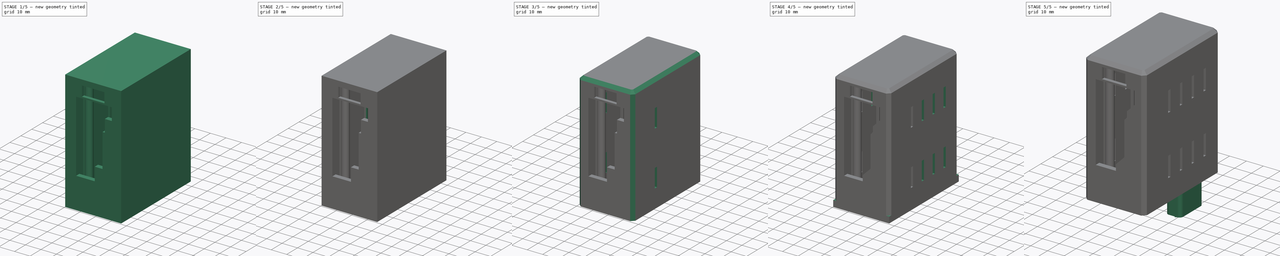
[diagram: build sequence overview — one tinted view per stage of 5, left to right]
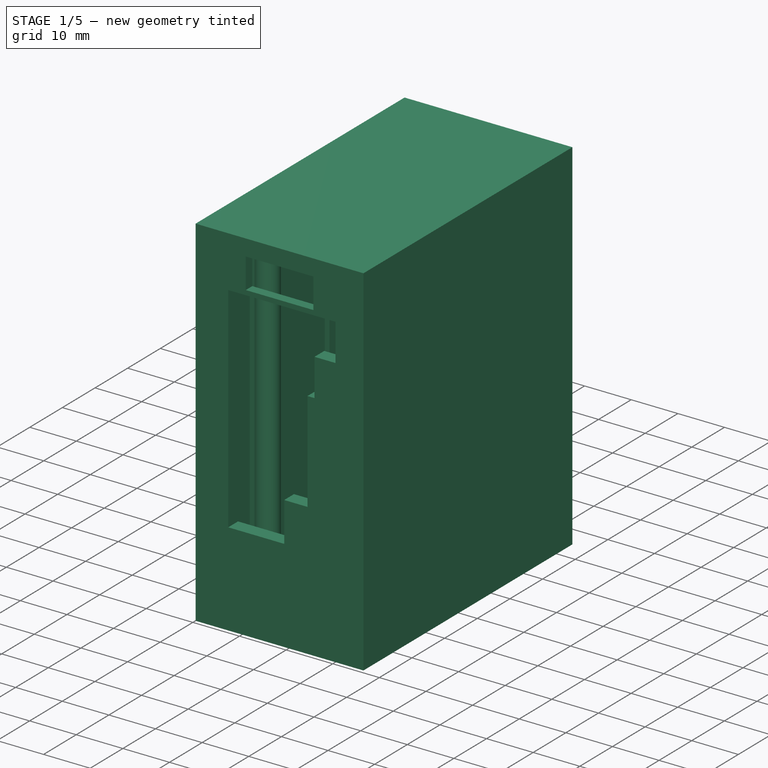
[diagram: stage 1 of 5 — iso view after this stage's code; geometry added in this stage tinted green]
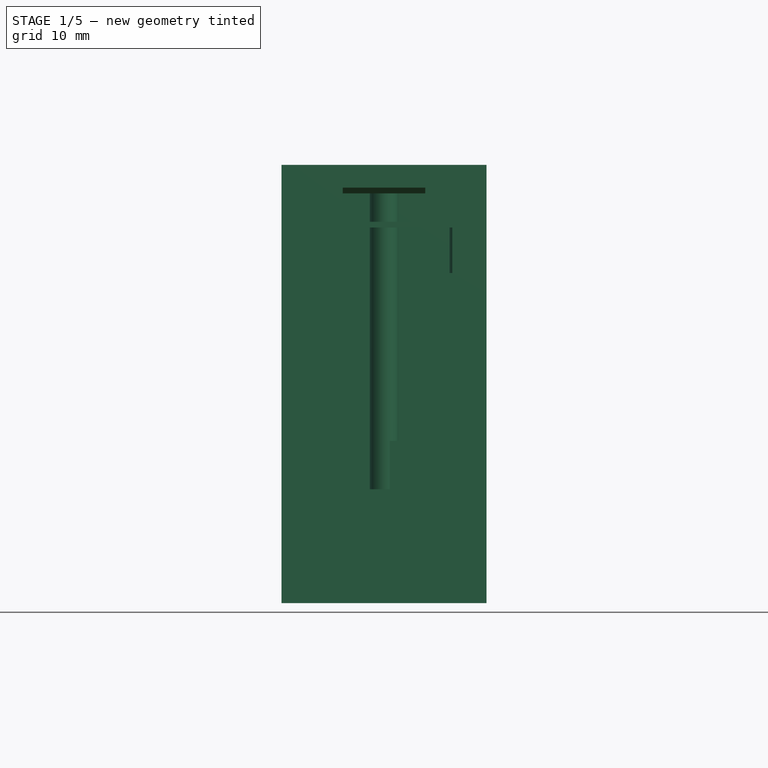
[diagram: stage 1 of 5 — front view after this stage's code; geometry added in this stage tinted green]
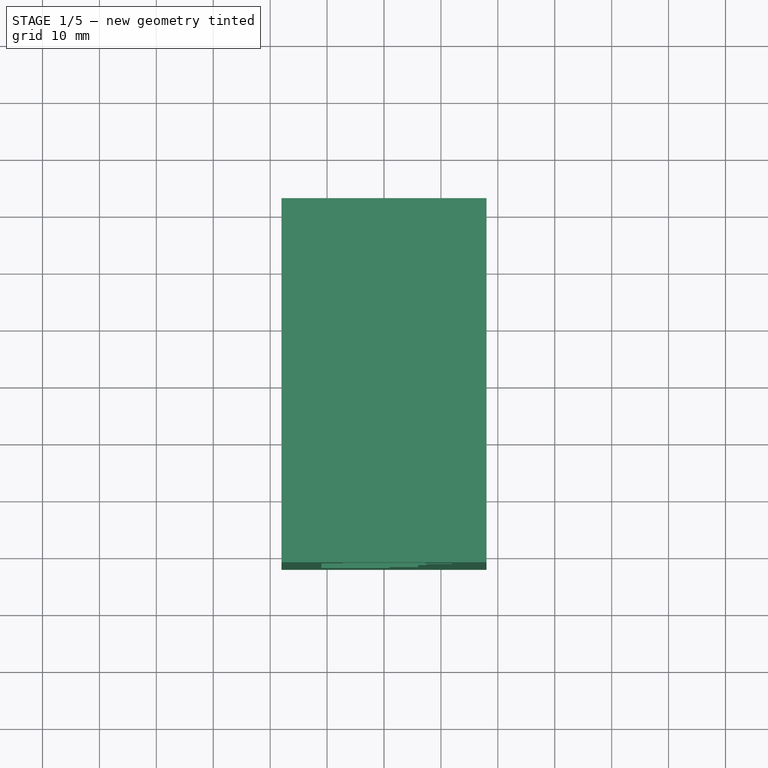
[diagram: stage 1 of 5 — top view after this stage's code; geometry added in this stage tinted green]
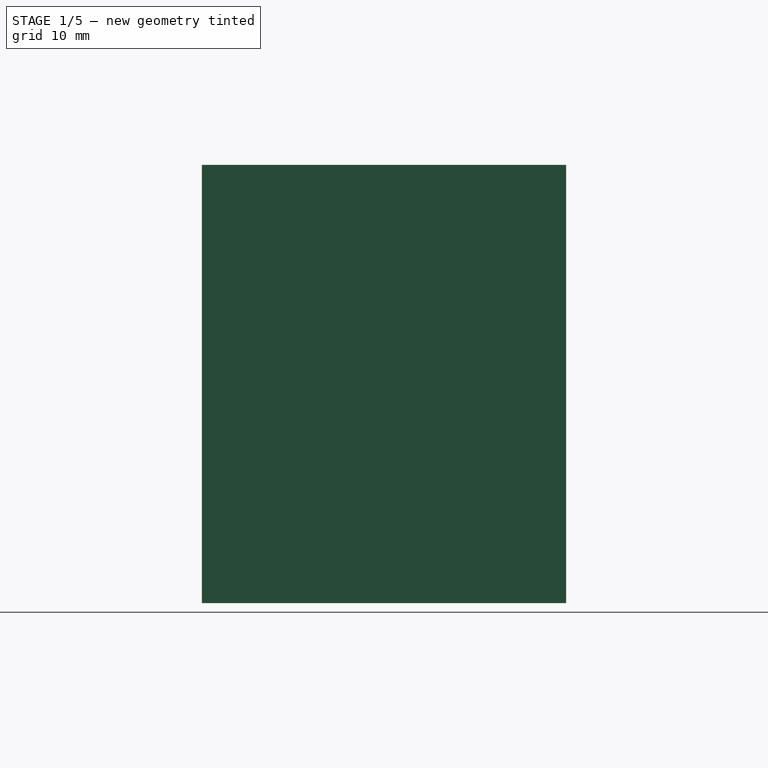
[diagram: stage 1 of 5 — right view after this stage's code; geometry added in this stage tinted green]
FCSTD DOCUMENT  (FreeCAD 0.19R)
Label: SwitchBoxUSB
License: All rights reserved
LicenseURL: http://en.wikipedia.org/wiki/All_rights_reserved
objects: Sketcher::SketchObject×17, PartDesign::Chamfer×14, PartDesign::Pocket×9, PartDesign::Pad×8, PartDesign::Fillet×5, PartDesign::Body×2, PartDesign::Mirrored×1, PartDesign::LinearPattern×1
note: 93 computed .brp shape members not serialized (recipe doc carries the construction recipe); baked Part::Feature solids carry a one-line shape summary decoded from their .brp

FEATURE [Sketcher::SketchObject] Sketch006
  FullyConstrained = false
  MapMode = 5
  Placement = pos=(0,0,0) rot=(1,0,0;3.14159rad)
  Support = -> [Pocket001]
  sketch-geometry (8):
    g0: LineSegment StartX=-15 StartY=-2.91162 StartZ=0 EndX=-15 EndY=-21.9362 EndZ=0
    g1: LineSegment StartX=15 StartY=-2.91162 StartZ=0 EndX=15 EndY=-21.9362 EndZ=0
    g2: LineSegment StartX=-6 StartY=-2.91162 StartZ=0 EndX=-6 EndY=-21.9362 EndZ=0
    g3: LineSegment StartX=6 StartY=-2.91162 StartZ=0 EndX=6 EndY=-21.9362 EndZ=0
    g4: LineSegment StartX=-15 StartY=-2.91162 StartZ=0 EndX=-6 EndY=-2.91162 EndZ=0
    g5: LineSegment StartX=-15 StartY=-21.9362 StartZ=0 EndX=-6 EndY=-21.9362 EndZ=0
    g6: LineSegment StartX=6 StartY=-2.91162 StartZ=0 EndX=15 EndY=-2.91162 EndZ=0
    g7: LineSegment StartX=6 StartY=-21.9362 StartZ=0 EndX=15 EndY=-21.9362 EndZ=0
  constraints (20):
    c: Vertical(g0)
    c: Vertical(g2)
    c: Coincident(g0,g4)
    c: Coincident(g4,g2)
    c: Horizontal(g4)
    c: Coincident(g0,g5)
    c: Coincident(g5,g2)
    c: Coincident(g3,g6)
    c: Coincident(g6,g1)
    c: Coincident(g3,g7)
    c: Coincident(g7,g1)
    c: Horizontal(g7)
    c: Vertical(g1)
    c: Distance(g5) = 9
    c: Distance(g7) = 9
    c: Horizontal(g6)
    c: Horizontal(g5)
    c: Symmetric(g3,g2,g-2)
    c: Symmetric(g3,g2,g-2)
    c: DistanceX(g2) = -6
FEATURE [Sketcher::SketchObject] Sketch
  FullyConstrained = false
  MapMode = 5
  Support = -> [XY_Plane]
  sketch-geometry (36):
    g0: LineSegment StartX=-18 StartY=32 StartZ=0 EndX=18 EndY=32 EndZ=0
    g1: LineSegment StartX=18 StartY=32 StartZ=0 EndX=18 EndY=-32 EndZ=0
    g2: LineSegment StartX=18 StartY=-32 StartZ=0 EndX=-18 EndY=-32 EndZ=0
    g3: LineSegment StartX=-18 StartY=-32 StartZ=0 EndX=-18 EndY=32 EndZ=0
    g4: LineSegment StartX=14.5 StartY=29 StartZ=0 EndX=14.5 EndY=24 EndZ=0
    g5: LineSegment StartX=14.5 StartY=24 StartZ=0 EndX=15.5 EndY=24 EndZ=0
    g6: LineSegment StartX=15.5 StartY=24 StartZ=0 EndX=15.5 EndY=22 EndZ=0
    g7: LineSegment StartX=15.5 StartY=22 StartZ=0 EndX=14.5 EndY=22 EndZ=0
    g8: LineSegment StartX=14.5 StartY=22 StartZ=0 EndX=14.5 EndY=4 EndZ=0
    g9: LineSegment StartX=14.5 StartY=4 StartZ=0 EndX=15.5 EndY=4 EndZ=0
    g10: LineSegment StartX=15.5 StartY=4 StartZ=0 EndX=15.5 EndY=2 EndZ=0
    g11: LineSegment StartX=15.5 StartY=2 StartZ=0 EndX=14.5 EndY=2 EndZ=0
    g12: LineSegment StartX=14.5 StartY=2 StartZ=0 EndX=14.5 EndY=-19 EndZ=0
    g13: LineSegment StartX=14.5 StartY=-19 StartZ=0 EndX=15.5 EndY=-19 EndZ=0
    g14: LineSegment StartX=15.5 StartY=-19 StartZ=0 EndX=15.5 EndY=-21 EndZ=0
    g15: LineSegment StartX=15.5 StartY=-21 StartZ=0 EndX=14.5 EndY=-21 EndZ=0
    g16: LineSegment StartX=14.5 StartY=-21 StartZ=0 EndX=14.5 EndY=-29 EndZ=0
    g17: LineSegment StartX=14.5 StartY=-29 StartZ=0 EndX=-14.5 EndY=-29 EndZ=0
    g18: LineSegment StartX=-14.5 StartY=-21 StartZ=0 EndX=-15.5 EndY=-21 EndZ=0
    g19: LineSegment StartX=-15.5 StartY=-21 StartZ=0 EndX=-15.5 EndY=-19 EndZ=0
    g20: LineSegment StartX=-15.5 StartY=-19 StartZ=0 EndX=-14.5 EndY=-19 EndZ=0
    g21: LineSegment StartX=-14.5 StartY=-19 StartZ=0 EndX=-14.5 EndY=2 EndZ=0
    g22: LineSegment StartX=-14.5 StartY=2 StartZ=0 EndX=-15.5 EndY=2 EndZ=0
    g23: LineSegment StartX=-15.5 StartY=2 StartZ=0 EndX=-15.5 EndY=4 EndZ=0
    g24: LineSegment StartX=-15.5 StartY=4 StartZ=0 EndX=-14.5 EndY=4 EndZ=0
    g25: LineSegment StartX=-14.5 StartY=4 StartZ=0 EndX=-14.5 EndY=22 EndZ=0
    g26: LineSegment StartX=-14.5 StartY=22 StartZ=0 EndX=-15.5 EndY=22 EndZ=0
    g27: LineSegment StartX=-15.5 StartY=22 StartZ=0 EndX=-15.5 EndY=24 EndZ=0
    g28: LineSegment StartX=-15.5 StartY=24 StartZ=0 EndX=-14.5 EndY=24 EndZ=0
    g29: LineSegment StartX=-14.5 StartY=24 StartZ=0 EndX=-14.5 EndY=29 EndZ=0
    g30: LineSegment StartX=-14.5 StartY=29 StartZ=0 EndX=14.5 EndY=29 EndZ=0
    g31: LineSegment StartX=-14.5 StartY=52.6434 StartZ=0 EndX=-14.5 EndY=-62.9072 EndZ=0
    g32: LineSegment StartX=14.5 StartY=55.5069 StartZ=0 EndX=14.5 EndY=-57.6711 EndZ=0
    g33: LineSegment StartX=15.5 StartY=55.8398 StartZ=0 EndX=15.5 EndY=-58.9978 EndZ=0
    g34: LineSegment StartX=-15.5 StartY=58.5357 StartZ=0 EndX=-15.5 EndY=-69.96 EndZ=0
    g35: LineSegment StartX=-14.5 StartY=-29 StartZ=0 EndX=-14.5 EndY=-21 EndZ=0
  constraints (101):
    c: Horizontal(g0)
    c: Coincident(g0,g1)
    c: Coincident(g1,g2)
    c: Coincident(g2,g3)
    c: Coincident(g3,g0)
    c: Vertical(g4)
    c: Coincident(g4,g5)
    c: Coincident(g5,g6)
    c: Coincident(g6,g7)
    c: Horizontal(g7)
    c: Coincident(g7,g8)
    c: Vertical(g8)
    c: Coincident(g8,g9)
    c: Coincident(g9,g10)
    c: Coincident(g10,g11)
    c: Coincident(g11,g12)
    c: Vertical(g12)
    c: Coincident(g12,g13)
    c: Coincident(g13,g14)
    c: Coincident(g14,g15)
    c: Coincident(g15,g16)
    c: Coincident(g16,g17)
    c: Horizontal(g17)
    c: Coincident(g18,g19)
    c: Vertical(g19)
    c: Coincident(g19,g20)
    c: Coincident(g20,g21)
    c: Vertical(g21)
    c: Coincident(g21,g22)
    c: Coincident(g22,g23)
    c: Coincident(g23,g24)
    c: Horizontal(g24)
    c: Coincident(g24,g25)
    c: Coincident(g25,g26)
    c: Coincident(g26,g27)
    c: Vertical(g27)
    c: Coincident(g27,g28)
    c: Horizontal(g28)
    c: Coincident(g28,g29)
    c: Vertical(g29)
    c: Coincident(g29,g30)
    c: Coincident(g30,g4)
    c: Horizontal(g30)
    c: Symmetric(g1,g2,g-2)
    c: Vertical(g3)
    c: Symmetric(g7,g25,g-2)
    c: Vertical(g31)
    c: Vertical(g32)
    c: Vertical(g33)
    c: PointOnObject(g18,g31)
    c: PointOnObject(g20,g31)
    c: PointOnObject(g24,g31)
    c: PointOnObject(g25,g31)
    c: PointOnObject(g28,g31)
    c: PointOnObject(g16,g32)
    c: PointOnObject(g15,g32)
    c: PointOnObject(g12,g32)
    c: PointOnObject(g8,g32)
    c: PointOnObject(g4,g32)
    c: PointOnObject(g14,g33)
    c: PointOnObject(g13,g33)
    c: PointOnObject(g10,g33)
    c: PointOnObject(g9,g33)
    c: PointOnObject(g6,g33)
    c: PointOnObject(g5,g33)
    c: PointOnObject(g18,g34)
    c: PointOnObject(g22,g34)
    c: PointOnObject(g23,g34)
    c: PointOnObject(g26,g34)
    c: DistanceX(g34,g33) = 31
    c: Horizontal(g26)
    c: Horizontal(g13)
    c: Horizontal(g15)
    c: Horizontal(g11)
    c: Horizontal(g9)
    c: Vertical(g34)
    c: Distance(g32,g33) = 1
    c: Distance(g34,g31) = 1
    c: Coincident(g17,g35)
    c: Coincident(g35,g18)
    c: Vertical(g35)
    c: Horizontal(g20)
    c: Horizontal(g18)
    c: Equal(g14,g10)
    c: Equal(g10,g6)
    c: Equal(g6,g27)
    c: Equal(g27,g23)
    c: Equal(g23,g19)
    c: Distance(g10) = 2
    c: Distance(g28,g24) = 20
    c: Horizontal(g22)
    c: Horizontal(g5)
    c: Distance(g24,g20) = 23
    c: DistanceY(g20,g13) = 0
    c: DistanceY(g9,g24) = 0
    c: Distance(g4) = 5
    c: Distance(g0) = 36
    c: Distance(g4,g0) = 3
    c: DistanceY(g1,g16) = 3
    c: Symmetric(g1,g0,g-1)
    c: DistanceY(g1) = -32
FEATURE [PartDesign::Pad] Pad
  Direction = (1,1,1)
  Length = 72
  Length2 = 100
  Profile = -> Sketch
  Type = 0
FEATURE [Sketcher::SketchObject] Sketch002
  FullyConstrained = true
  MapMode = 5
  Placement = pos=(0,-32,0) rot=(1,0,0;1.5708rad)
  Support = -> [Pad]
  sketch-geometry (10):
    g0: LineSegment StartX=-11 StartY=66 StartZ=0 EndX=12 EndY=66 EndZ=0
    g1: LineSegment StartX=-11 StartY=20 StartZ=0 EndX=-11 EndY=66 EndZ=0
    g2: LineSegment StartX=-11 StartY=20 StartZ=0 EndX=1 EndY=20 EndZ=0
    g3: LineSegment StartX=1 StartY=20 StartZ=0 EndX=1 EndY=28.5 EndZ=0
    g4: LineSegment StartX=1 StartY=28.5 StartZ=0 EndX=6 EndY=28.5 EndZ=0
    g5: LineSegment StartX=6 StartY=28.5 StartZ=0 EndX=6 EndY=50 EndZ=0
    g6: LineSegment StartX=6 StartY=50 StartZ=0 EndX=7.5 EndY=50 EndZ=0
    g7: LineSegment StartX=7.5 StartY=50 StartZ=0 EndX=7.5 EndY=58 EndZ=0
    g8: LineSegment StartX=7.5 StartY=58 StartZ=0 EndX=12 EndY=58 EndZ=0
    g9: LineSegment StartX=12 StartY=58 StartZ=0 EndX=12 EndY=66 EndZ=0
  constraints (30):
    c: Coincident(g1,g0)
    c: Horizontal(g0)
    c: Vertical(g1)
    c: DistanceX(g1) = -11
    c: Coincident(g1,g2)
    c: Horizontal(g2)
    c: Coincident(g2,g3)
    c: Vertical(g3)
    c: Coincident(g3,g4)
    c: Coincident(g4,g5)
    c: Vertical(g5)
    c: Coincident(g5,g6)
    c: Coincident(g6,g7)
    c: Coincident(g7,g8)
    c: Horizontal(g8)
    c: Coincident(g8,g9)
    c: Vertical(g9)
    c: Coincident(g0,g9)
    c: DistanceX(g0) = 12
    c: DistanceX(g7) = 7.5
    c: DistanceX(g5) = 6
    c: Horizontal(g6)
    c: Vertical(g7)
    c: Horizontal(g4)
    c: DistanceY(g0) = 66
    c: Distance(g9) = 8
    c: Distance(g6,g0) = 16
    c: Distance(g4,g0) = 37.5
    c: Distance(g2,g0) = 46
    c: DistanceX(g2) = 1
FEATURE [PartDesign::Pocket] Pocket
  BaseFeature = -> Pad
  Length = 5
  Length2 = 100
  Profile = -> Sketch002
  Type = 0
FEATURE [Sketcher::SketchObject] Sketch013
  FullyConstrained = false
  MapMode = 5
  Placement = pos=(0,0,0) rot=(1,0,0;3.14159rad)
  sketch-geometry (5):
    g0: Circle CenterX=-14.0386 CenterY=15.9762 CenterZ=0 NormalX=0 NormalY=0 NormalZ=1 AngleXU=0 Radius=1.75
    g1: Circle CenterX=13.9774 CenterY=16.0224 CenterZ=0 NormalX=0 NormalY=0 NormalZ=1 AngleXU=0 Radius=1.75
    g2: Circle CenterX=-14.5073 CenterY=-5.11921 CenterZ=0 NormalX=0 NormalY=0 NormalZ=1 AngleXU=0 Radius=1.75
    g3: Circle CenterX=14.4969 CenterY=-5.13026 CenterZ=0 NormalX=0 NormalY=0 NormalZ=1 AngleXU=0 Radius=1.75
    g4: Circle CenterX=0 CenterY=-27.9739 CenterZ=0 NormalX=0 NormalY=0 NormalZ=1 AngleXU=0 Radius=1.75
  constraints (6):
    c: PointOnObject(g4,g-2)
    c: Diameter(g0) = 3.5
    c: Equal(g0,g1)
    c: Equal(g0,g3)
    c: Equal(g0,g2)
    c: Equal(g0,g4)
FEATURE [Sketcher::SketchObject] Sketch014  label="end"
  FullyConstrained = true
  MapMode = 5
  Placement = pos=(0,0,72) rot=(0,0,1;0rad)
  sketch-geometry (4):
    g0: LineSegment StartX=-18 StartY=32 StartZ=0 EndX=18 EndY=32 EndZ=0
    g1: LineSegment StartX=18 StartY=32 StartZ=0 EndX=18 EndY=-32 EndZ=0
    g2: LineSegment StartX=18 StartY=-32 StartZ=0 EndX=-18 EndY=-32 EndZ=0
    g3: LineSegment StartX=-18 StartY=-32 StartZ=0 EndX=-18 EndY=32 EndZ=0
  constraints (10):
    c: Coincident(g0,g1)
    c: Coincident(g1,g2)
    c: Coincident(g2,g3)
    c: Coincident(g3,g0)
    c: Horizontal(g2)
    c: Vertical(g3)
    c: Symmetric(g0,g0,g-2)
    c: Distance(g0) = 36
    c: Distance(g1) = 64
    c: Symmetric(g1,g0,g-1)
FEATURE [PartDesign::Pad] Pad007
  BaseFeature = -> Pocket
  Direction = (1,1,1)
  Length = 5
  Length2 = 100
  Profile = -> Sketch014
  Type = 0
FEATURE [Sketcher::SketchObject] Sketch011  label="screwboss"
  FullyConstrained = true
  MapMode = 5
  Placement = pos=(0,0,0) rot=(1,0,0;3.14159rad)
  Support = -> [Pad007]
  sketch-geometry (6):
    g0: Circle CenterX=-12 CenterY=-5.1 CenterZ=0 NormalX=0 NormalY=0 NormalZ=1 AngleXU=0 Radius=2.5
    g1: Circle CenterX=12 CenterY=-5.1 CenterZ=0 NormalX=0 NormalY=0 NormalZ=1 AngleXU=0 Radius=2.5
    g2: Circle CenterX=-14 CenterY=16 CenterZ=0 NormalX=0 NormalY=0 NormalZ=1 AngleXU=0 Radius=2.5
    g3: Circle CenterX=14 CenterY=16 CenterZ=0 NormalX=0 NormalY=0 NormalZ=1 AngleXU=0 Radius=2.5
    g4: Circle CenterX=0 CenterY=29 CenterZ=0 NormalX=0 NormalY=0 NormalZ=1 AngleXU=0 Radius=2.5
    g5: Circle CenterX=0 CenterY=-28 CenterZ=0 NormalX=0 NormalY=0 NormalZ=1 AngleXU=0 Radius=2.5
  constraints (16):
    c: Diameter(g3) = 5
    c: Equal(g3,g2)
    c: Equal(g3,g1)
    c: Equal(g3,g0)
    c: Symmetric(g1,g0,g-2)
    c: Symmetric(g3,g2,g-2)
    c: DistanceX(g1) = 12
    c: DistanceX(g3) = 14
    c: PointOnObject(g4,g-2)
    c: Diameter(g4) = 5
    c: DistanceY(g4) = 29
    c: DistanceY(g1) = -5.1
    c: DistanceY(g3) = 16
    c: PointOnObject(g5,g-2)
    c: Diameter(g5) = 5
    c: DistanceY(g5) = -28
FEATURE [PartDesign::Pad] Pad008
  BaseFeature = -> Pad007
  Direction = (1,1,1)
  Length = 73
  Length2 = 100
  Profile = -> Sketch011
  Reversed = true
  Type = 0
FEATURE [Sketcher::SketchObject] Sketch015  label="screws"
  FullyConstrained = true
  MapMode = 5
  Placement = pos=(0,0,0) rot=(1,0,0;3.14159rad)
  Support = -> [Pad008]
  sketch-geometry (3):
    g0: Circle CenterX=-14 CenterY=16 CenterZ=0 NormalX=0 NormalY=0 NormalZ=1 AngleXU=0 Radius=1.4
    g1: Circle CenterX=14 CenterY=16 CenterZ=0 NormalX=0 NormalY=0 NormalZ=1 AngleXU=0 Radius=1.4
    g2: Circle CenterX=0 CenterY=-28 CenterZ=0 NormalX=0 NormalY=0 NormalZ=1 AngleXU=0 Radius=1.4
  constraints (8):
    c: Diameter(g1) = 2.8
    c: Equal(g1,g0)
    c: Equal(g1,g2)
    c: Symmetric(g0,g1,g-2)
    c: PointOnObject(g2,g-2)
    c: DistanceY(g2) = -28
    c: DistanceX(g1) = 14
    c: DistanceY(g1) = 16
FEATURE [PartDesign::Pocket] Pocket002
  BaseFeature = -> Pad008
  Length = 10
  Length2 = 100
  Profile = -> Sketch015
  Type = 0
FEATURE [PartDesign::Body] Body001  label="SwitchCap"
  Group = -> [Sketch003,Sketch005,Sketch006,Pad005,Pocket001,Sketch013,Sketch016,Pocket003,Pocket004,Sketch017,Pad009,Sketch023,Pad013,Pad014,Fillet,Chamfer,Chamfer011,Chamfer012]
  Origin = -> Origin001
  Placement = pos=(0,0,-4) rot=(0,0,1;0rad)
  Tip = -> Chamfer012
FEATURE [Sketcher::SketchObject] Sketch026
  FullyConstrained = false
  MapMode = 5
  Placement = pos=(0,-32,0) rot=(1,0,0;1.5708rad)
  Support = -> [Pad007]
  sketch-geometry (5):
    g0: LineSegment StartX=-7.25 StartY=73.5 StartZ=0 EndX=7.25 EndY=73.5 EndZ=0
    g1: LineSegment StartX=7.25 StartY=73.5 StartZ=0 EndX=7.25 EndY=67 EndZ=0
    g2: LineSegment StartX=7.25 StartY=67 StartZ=0 EndX=-7.25 EndY=67 EndZ=0
    g3: LineSegment StartX=-7.25 StartY=67 StartZ=0 EndX=-7.25 EndY=73.5 EndZ=0
    g4: LineSegment StartX=-36.845 StartY=72 StartZ=0 EndX=41.1194 EndY=72 EndZ=0
  constraints (13):
    c: Coincident(g0,g1)
    c: Coincident(g1,g2)
    c: Coincident(g2,g3)
    c: Coincident(g3,g0)
    c: Horizontal(g0)
    c: Vertical(g1)
    c: Vertical(g3)
    c: Distance(g0) = 14.5
    c: Distance(g1) = 6.5
    c: Symmetric(g1,g2,g-2)
    c: Horizontal(g4)
    c: Distance(g2,g4) = 5
    c: DistanceY(g4) = 72
FEATURE [PartDesign::Pocket] Pocket005
  BaseFeature = -> Pocket002
  Length = 5
  Length2 = 100
  Profile = -> Sketch026
  Type = 0
FEATURE [Sketcher::SketchObject] Sketch030
  FullyConstrained = true
  MapMode = 5
  Placement = pos=(0,0,72) rot=(1,0,0;3.14159rad)
  Support = -> [Pocket005]
  sketch-geometry (4):
    g0: LineSegment StartX=-8 StartY=30 StartZ=0 EndX=8 EndY=30 EndZ=0
    g1: LineSegment StartX=8 StartY=30 StartZ=0 EndX=8 EndY=3 EndZ=0
    g2: LineSegment StartX=8 StartY=3 StartZ=0 EndX=-8 EndY=3 EndZ=0
    g3: LineSegment StartX=-8 StartY=3 StartZ=0 EndX=-8 EndY=30 EndZ=0
  constraints (11):
    c: Coincident(g0,g1)
    c: Coincident(g1,g2)
    c: Coincident(g2,g3)
    c: Coincident(g3,g0)
    c: Horizontal(g0)
    c: Vertical(g1)
    c: Vertical(g3)
    c: Distance(g2) = 16
    c: Symmetric(g1,g2,g-2)
    c: DistanceY(g0) = 30
    c: Distance(g1) = 27
FEATURE [PartDesign::Pocket] Pocket006
  BaseFeature = -> Pocket005
  Length = 4
  Length2 = 10
  Profile = -> Sketch030
  Type = 4
FEATURE [PartDesign::Chamfer] Chamfer013
  Angle = 45
  Base = -> Pocket006 [Edge188]
  BaseFeature = -> Pocket006
  ChamferType = 0
  FlipDirection = false
  Size = 1
  Size2 = 1
  SupportTransform = false
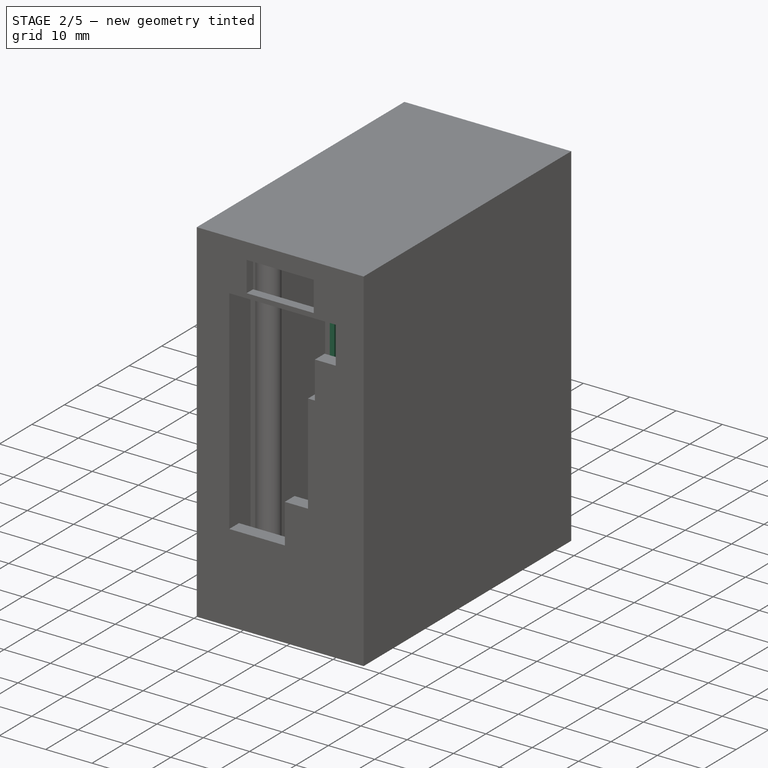
[diagram: stage 2 of 5 — iso view after this stage's code; geometry added in this stage tinted green]
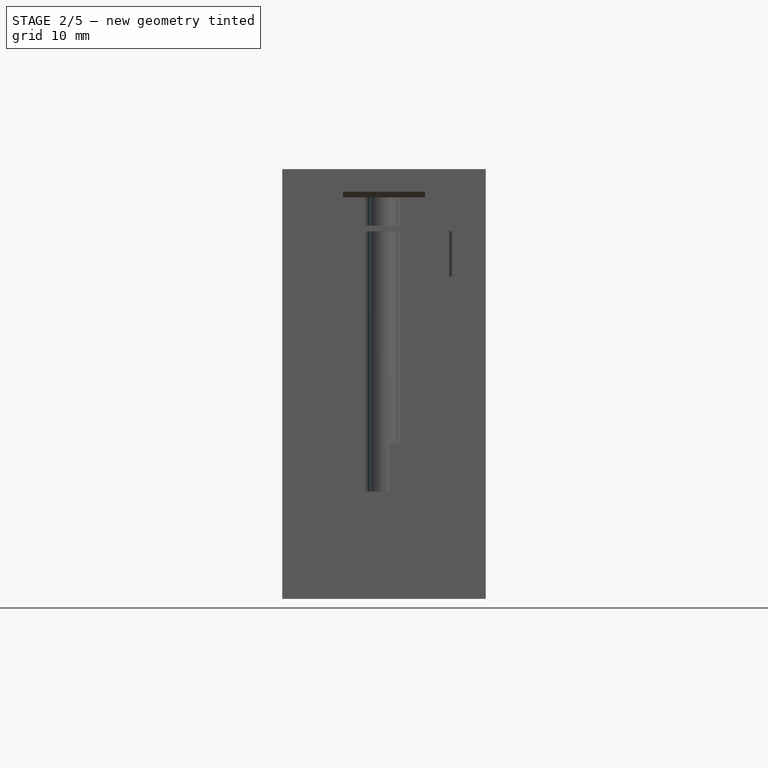
[diagram: stage 2 of 5 — front view after this stage's code; geometry added in this stage tinted green]
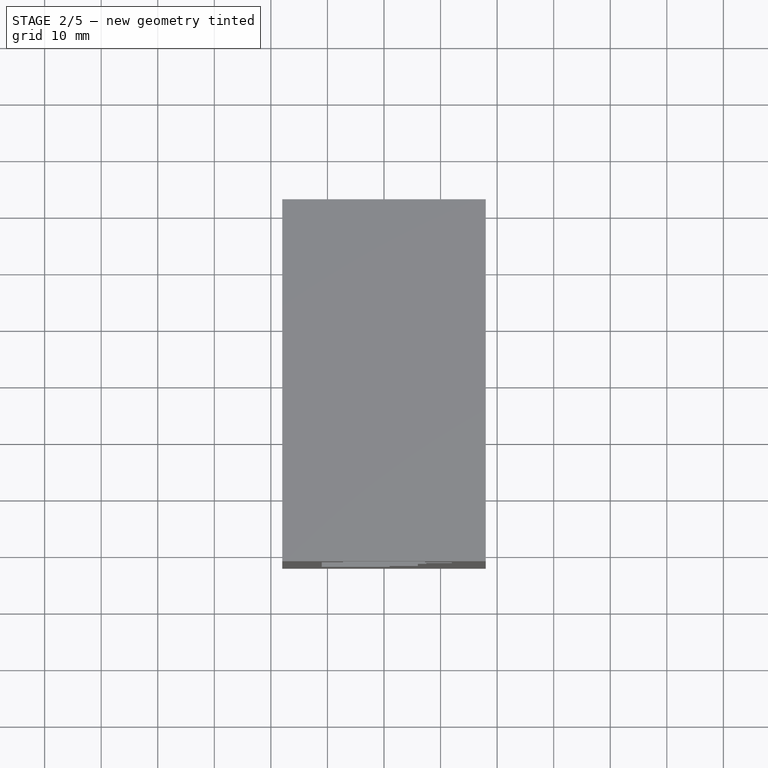
[diagram: stage 2 of 5 — top view after this stage's code; geometry added in this stage tinted green]
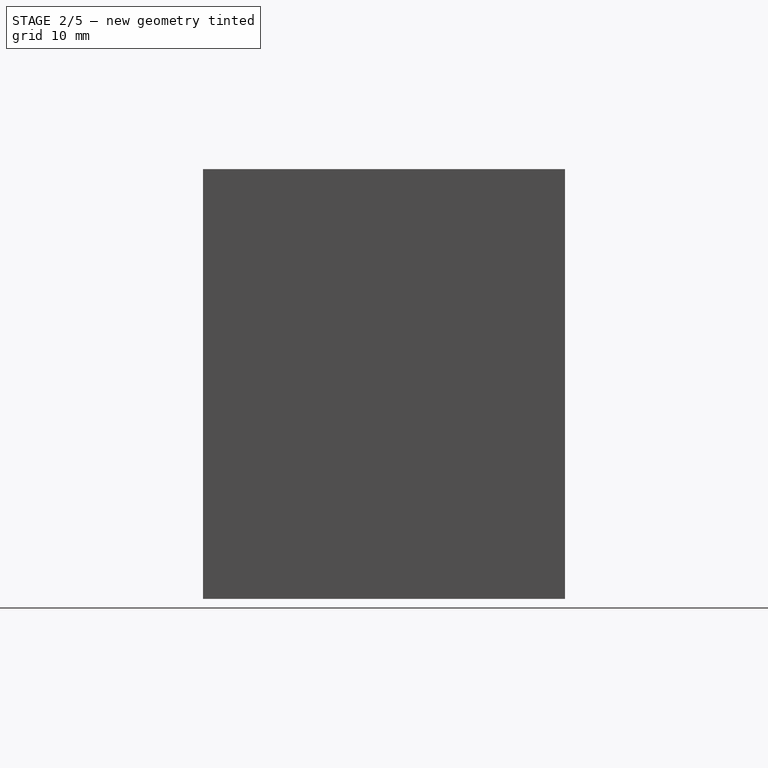
[diagram: stage 2 of 5 — right view after this stage's code; geometry added in this stage tinted green]
FEATURE [Sketcher::SketchObject] Sketch033
  FullyConstrained = false
  MapMode = 5
  Placement = pos=(0,0,0) rot=(1,0,0;3.14159rad)
  Support = -> [Chamfer013]
  sketch-geometry (4):
    g0: LineSegment StartX=-27.8934 StartY=46.0982 StartZ=0 EndX=38.5285 EndY=46.0982 EndZ=0
    g1: LineSegment StartX=38.5285 StartY=46.0982 StartZ=0 EndX=38.5285 EndY=-49.5997 EndZ=0
    g2: LineSegment StartX=38.5285 StartY=-49.5997 StartZ=0 EndX=-27.8934 EndY=-49.5997 EndZ=0
    g3: LineSegment StartX=-27.8934 StartY=-49.5997 StartZ=0 EndX=-27.8934 EndY=46.0982 EndZ=0
  constraints (8):
    c: Coincident(g0,g1)
    c: Coincident(g1,g2)
    c: Coincident(g2,g3)
    c: Coincident(g3,g0)
    c: Horizontal(g0)
    c: Horizontal(g2)
    c: Vertical(g1)
    c: Vertical(g3)
FEATURE [PartDesign::Pocket] Pocket007
  BaseFeature = -> Chamfer013
  Length = 1
  Length2 = 100
  Profile = -> Sketch033
  Type = 0
FEATURE [Sketcher::SketchObject] Sketch024
  FullyConstrained = false
  MapMode = 5
  Placement = pos=(0,0,1) rot=(1,0,0;3.14159rad)
  Support = -> [Pocket007]
  sketch-geometry (3):
    g0: LineSegment StartX=-14.9852 StartY=-4 StartZ=0 EndX=-13.5 EndY=-4 EndZ=0
    g1: LineSegment StartX=-13.5 StartY=-4 StartZ=0 EndX=-14.9561 EndY=-7.87016 EndZ=0
    g2: LineSegment StartX=-14.9561 StartY=-7.87016 StartZ=0 EndX=-14.9852 EndY=-4 EndZ=0
  constraints (6):
    c: Horizontal(g0)
    c: Coincident(g0,g1)
    c: Coincident(g1,g2)
    c: Coincident(g2,g0)
    c: DistanceY(g0) = -4
    c: DistanceX(g0) = -13.5
FEATURE [PartDesign::Pad] Pad015
  BaseFeature = -> Pocket007
  Direction = (1,1,1)
  Length = 71
  Length2 = 100
  Profile = -> Sketch024
  Reversed = true
  Type = 0
FEATURE [PartDesign::Mirrored] Mirrored
  BaseFeature = -> Pad015
  MirrorPlane = -> Sketch024 [V_Axis]
  Originals = -> [Pad015]
FEATURE [PartDesign::Fillet] Fillet001
  Base = -> Mirrored [Edge106]
  BaseFeature = -> Mirrored
  Radius = 1
  SupportTransform = false
FEATURE [PartDesign::Fillet] Fillet002
  Base = -> Fillet001 [Edge106]
  BaseFeature = -> Fillet001
  Radius = 1
  SupportTransform = false
FEATURE [PartDesign::Fillet] Fillet003
  Base = -> Fillet002 [Edge147]
  BaseFeature = -> Fillet002
  Radius = 1
  SupportTransform = false
FEATURE [PartDesign::Fillet] Fillet004
  Base = -> Fillet003 [Edge120]
  BaseFeature = -> Fillet003
  Radius = 0.5
  SupportTransform = false
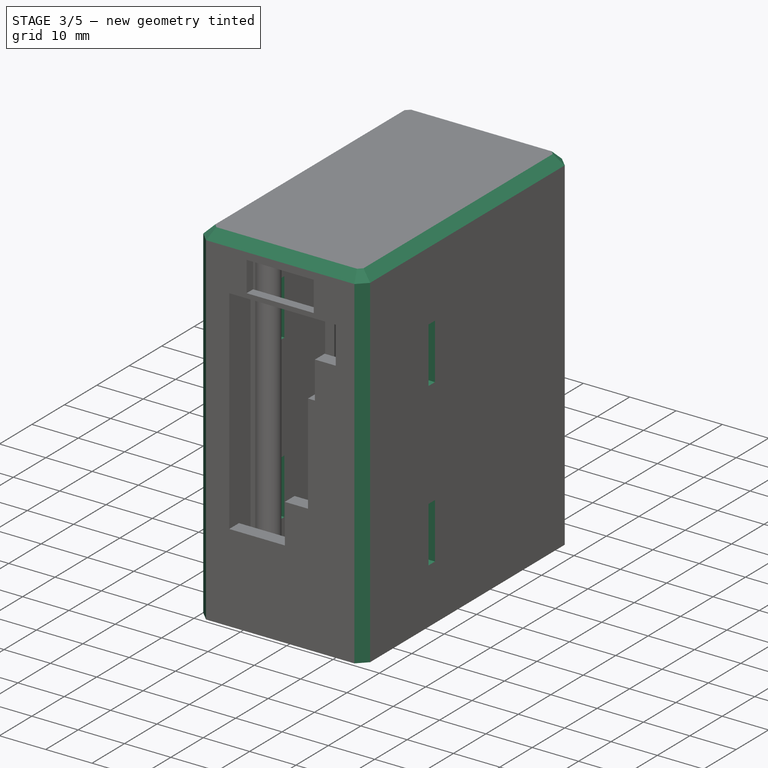
[diagram: stage 3 of 5 — iso view after this stage's code; geometry added in this stage tinted green]
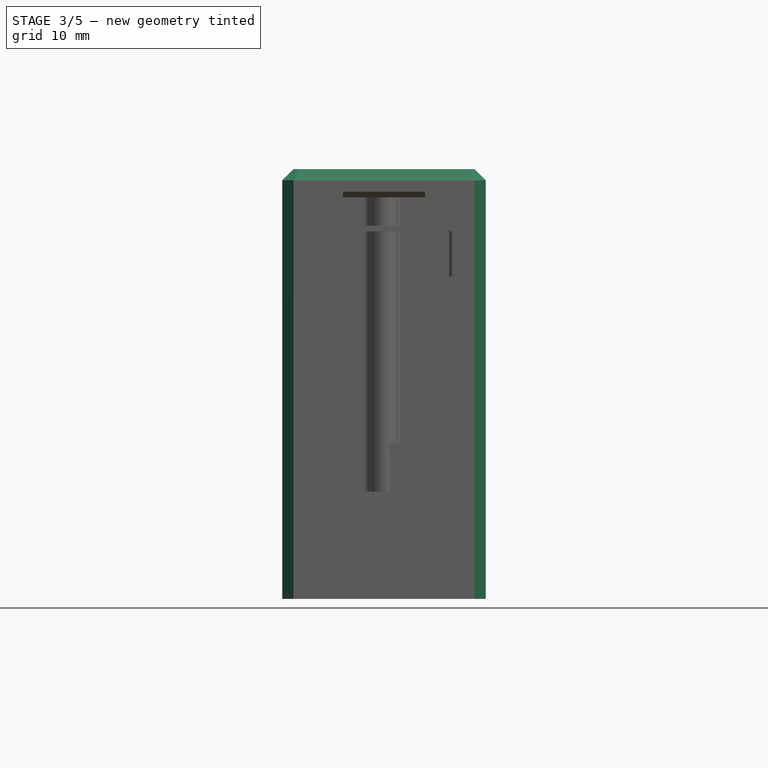
[diagram: stage 3 of 5 — front view after this stage's code; geometry added in this stage tinted green]
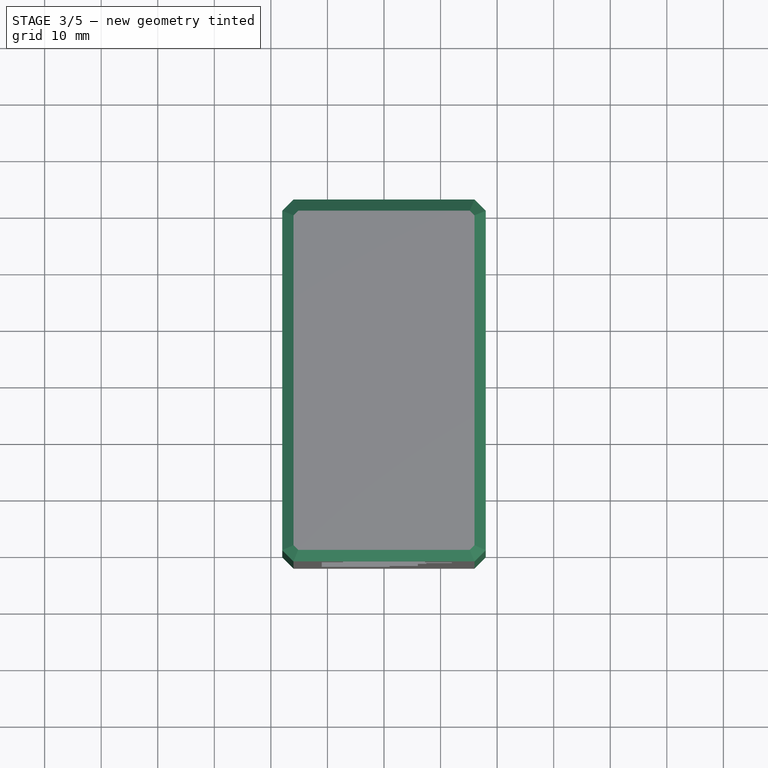
[diagram: stage 3 of 5 — top view after this stage's code; geometry added in this stage tinted green]
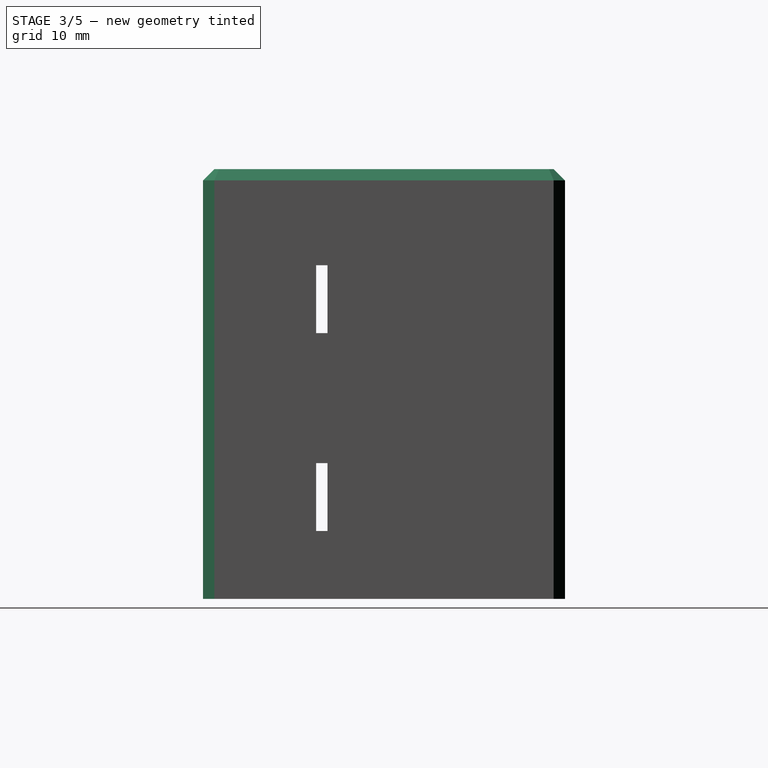
[diagram: stage 3 of 5 — right view after this stage's code; geometry added in this stage tinted green]
FEATURE [PartDesign::Chamfer] Chamfer014
  Angle = 45
  Base = -> Fillet004 [Edge73]
  BaseFeature = -> Fillet004
  ChamferType = 0
  FlipDirection = false
  Size = 1
  Size2 = 1
  SupportTransform = false
FEATURE [PartDesign::Chamfer] Chamfer015
  Angle = 45
  Base = -> Chamfer014 [Edge76]
  BaseFeature = -> Chamfer014
  ChamferType = 0
  FlipDirection = false
  Size = 1
  Size2 = 1
  SupportTransform = false
FEATURE [PartDesign::Chamfer] Chamfer016
  Angle = 45
  Base = -> Chamfer015 [Edge135]
  BaseFeature = -> Chamfer015
  ChamferType = 0
  FlipDirection = false
  Size = 1
  Size2 = 1
  SupportTransform = false
FEATURE [PartDesign::Chamfer] Chamfer017
  Angle = 45
  Base = -> Chamfer016 [Edge64]
  BaseFeature = -> Chamfer016
  ChamferType = 0
  FlipDirection = false
  Size = 1
  Size2 = 1
  SupportTransform = false
FEATURE [PartDesign::Chamfer] Chamfer018
  Angle = 45
  Base = -> Chamfer017 [Edge227,Edge221,Edge229,Edge230]
  BaseFeature = -> Chamfer017
  ChamferType = 0
  FlipDirection = false
  Size = 2
  Size2 = 1
  SupportTransform = false
FEATURE [PartDesign::Chamfer] Chamfer019
  Angle = 45
  Base = -> Chamfer018 [Edge237,Edge235,Edge242,Edge241,Edge239,Edge231,Edge233]
  BaseFeature = -> Chamfer018
  ChamferType = 0
  FlipDirection = false
  Size = 2
  Size2 = 1
  SupportTransform = false
FEATURE [PartDesign::Chamfer] Chamfer020
  Angle = 45
  Base = -> Chamfer019 [Edge4]
  BaseFeature = -> Chamfer019
  ChamferType = 0
  FlipDirection = false
  Size = 2
  Size2 = 1
  SupportTransform = false
FEATURE [Sketcher::SketchObject] Sketch034
  FullyConstrained = true
  MapMode = 5
  Placement = pos=(18,0,0) rot=(0.57735,0.57735,0.57735;2.0944rad)
  Support = -> [Chamfer020]
  sketch-geometry (8):
    g0: LineSegment StartX=-10 StartY=60 StartZ=0 EndX=-12 EndY=60 EndZ=0
    g1: LineSegment StartX=-12 StartY=60 StartZ=0 EndX=-12 EndY=48 EndZ=0
    g2: LineSegment StartX=-12 StartY=48 StartZ=0 EndX=-10 EndY=48 EndZ=0
    g3: LineSegment StartX=-10 StartY=48 StartZ=0 EndX=-10 EndY=60 EndZ=0
    g4: LineSegment StartX=-12 StartY=25 StartZ=0 EndX=-10 EndY=25 EndZ=0
    g5: LineSegment StartX=-10 StartY=25 StartZ=0 EndX=-10 EndY=13 EndZ=0
    g6: LineSegment StartX=-10 StartY=13 StartZ=0 EndX=-12 EndY=13 EndZ=0
    g7: LineSegment StartX=-12 StartY=13 StartZ=0 EndX=-12 EndY=25 EndZ=0
  constraints (24):
    c: Coincident(g0,g1)
    c: Coincident(g1,g2)
    c: Coincident(g2,g3)
    c: Coincident(g3,g0)
    c: Horizontal(g0)
    c: Horizontal(g2)
    c: Vertical(g1)
    c: Vertical(g3)
    c: Distance(g0) = 2
    c: Distance(g1) = 12
    c: DistanceX(g0) = -10
    c: DistanceY(g0) = 60
    c: Coincident(g4,g5)
    c: Coincident(g5,g6)
    c: Coincident(g6,g7)
    c: Coincident(g7,g4)
    c: Horizontal(g4)
    c: Horizontal(g6)
    c: Vertical(g5)
    c: Vertical(g7)
    c: Equal(g4,g0)
    c: Equal(g1,g7)
    c: DistanceX(g4,g1) = 0
    c: DistanceY(g4) = 25
FEATURE [PartDesign::Pocket] Pocket008
  BaseFeature = -> Chamfer020
  Length = 5
  Length2 = 100
  Profile = -> Sketch034
  Type = 1
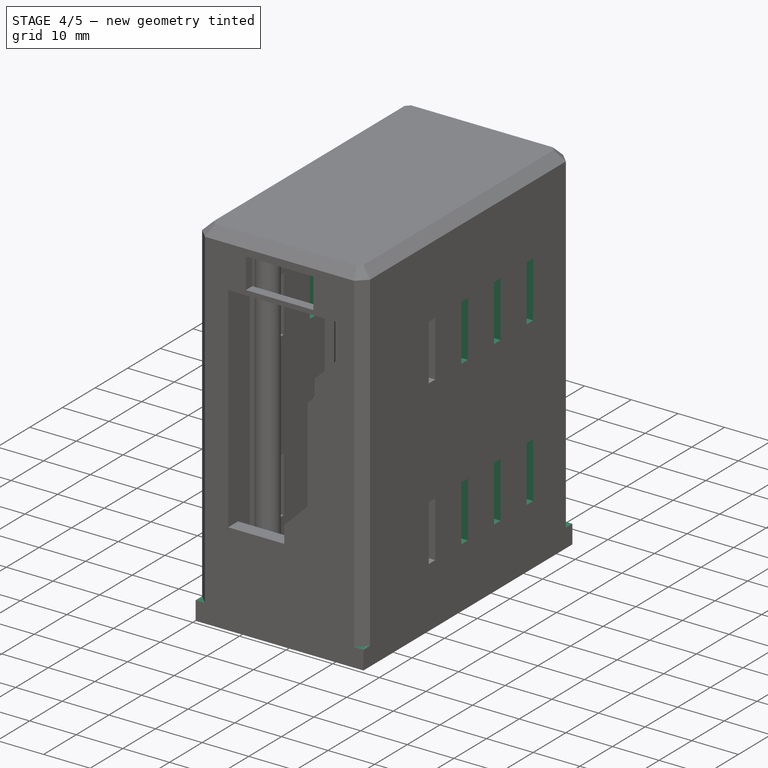
[diagram: stage 4 of 5 — iso view after this stage's code; geometry added in this stage tinted green]
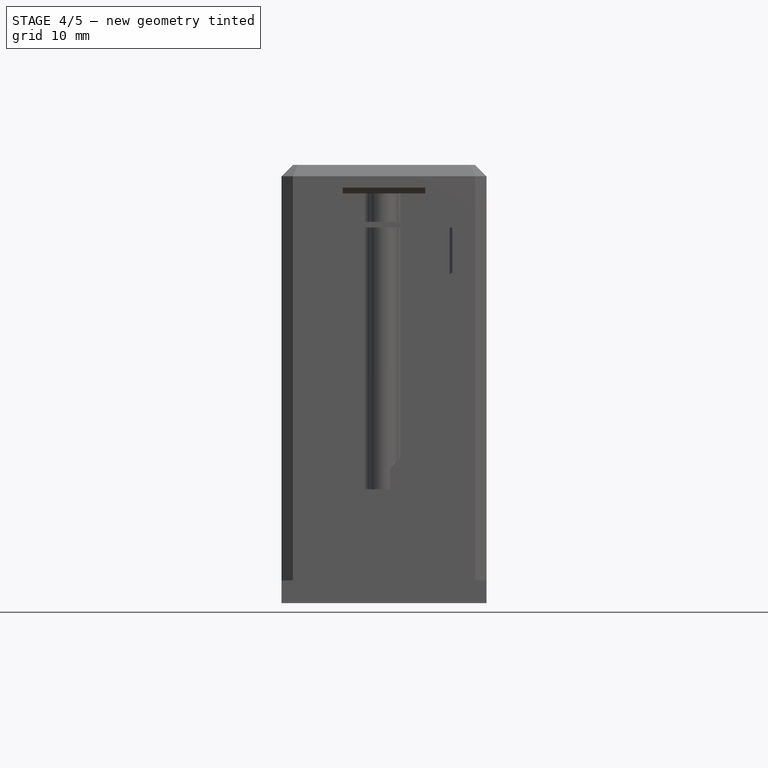
[diagram: stage 4 of 5 — front view after this stage's code; geometry added in this stage tinted green]
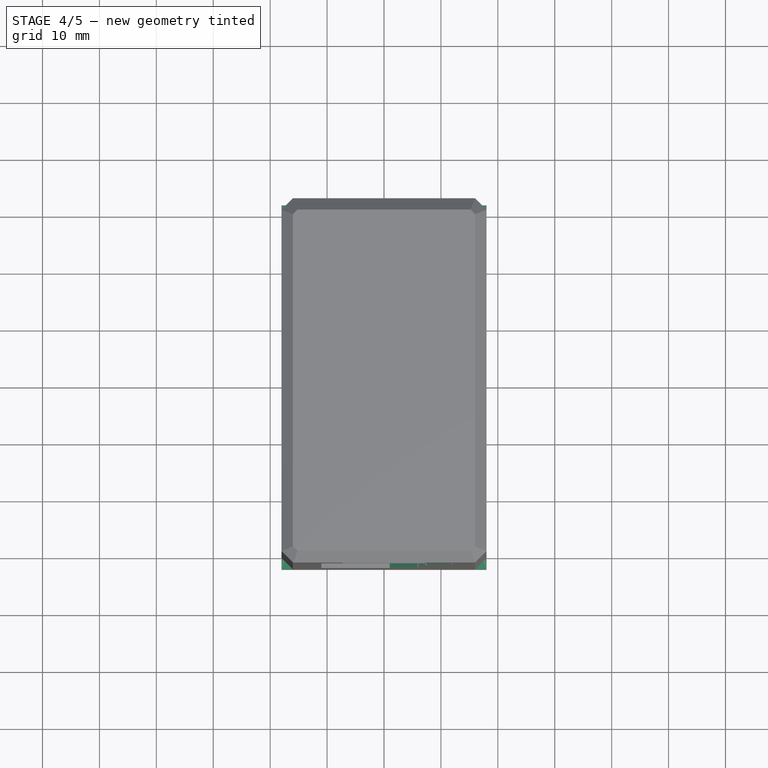
[diagram: stage 4 of 5 — top view after this stage's code; geometry added in this stage tinted green]
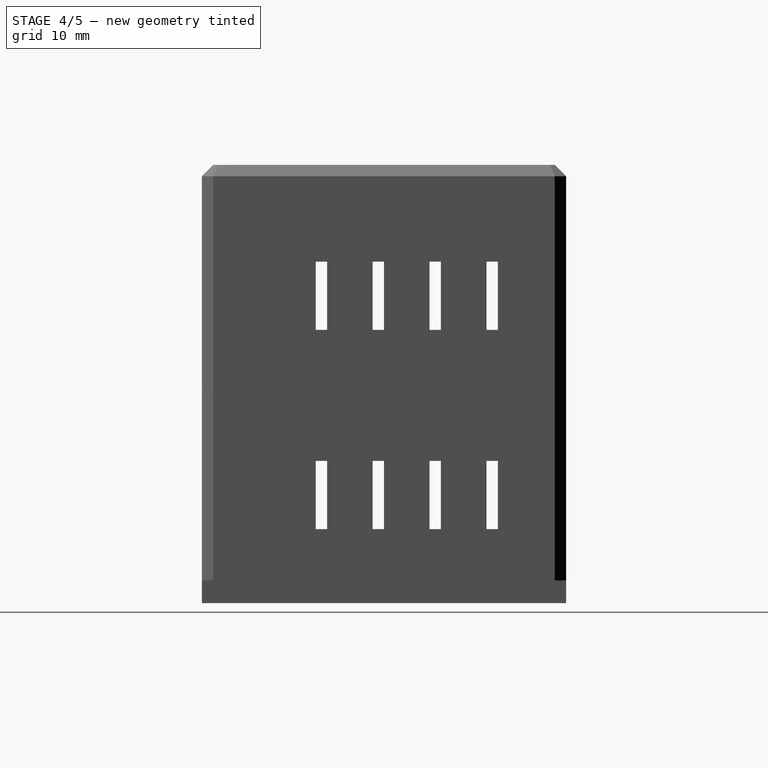
[diagram: stage 4 of 5 — right view after this stage's code; geometry added in this stage tinted green]
FEATURE [Sketcher::SketchObject] Sketch003
  FullyConstrained = true
  MapMode = 5
  Support = -> [XY_Plane001]
  sketch-geometry (4):
    g0: LineSegment StartX=-18 StartY=32 StartZ=0 EndX=18 EndY=32 EndZ=0
    g1: LineSegment StartX=18 StartY=32 StartZ=0 EndX=18 EndY=-32 EndZ=0
    g2: LineSegment StartX=18 StartY=-32 StartZ=0 EndX=-18 EndY=-32 EndZ=0
    g3: LineSegment StartX=-18 StartY=-32 StartZ=0 EndX=-18 EndY=32 EndZ=0
  constraints (10):
    c: Coincident(g0,g1)
    c: Coincident(g1,g2)
    c: Coincident(g2,g3)
    c: Coincident(g3,g0)
    c: Horizontal(g2)
    c: Vertical(g3)
    c: Distance(g0) = 36
    c: Distance(g1) = 64
    c: Symmetric(g0,g1,g-1)
    c: Symmetric(g0,g0,g-2)
FEATURE [PartDesign::Pad] Pad005
  Direction = (1,1,1)
  Length = 4
  Length2 = 100
  Profile = -> Sketch003
  Type = 0
FEATURE [Sketcher::SketchObject] Sketch005
  FullyConstrained = false
  MapMode = 5
  Placement = pos=(0,0,0) rot=(1,0,0;3.14159rad)
  Support = -> [Pad005]
  sketch-geometry (2):
    g0: Circle CenterX=-0.128096 CenterY=-16.8565 CenterZ=0 NormalX=0 NormalY=0 NormalZ=1 AngleXU=0 Radius=3.25
    g1: Circle CenterX=-0.128096 CenterY=-6.99288 CenterZ=0 NormalX=0 NormalY=0 NormalZ=1 AngleXU=0 Radius=3.25
  constraints (2):
    c: Diameter(g1) = 6.5
    c: Diameter(g0) = 6.5
FEATURE [PartDesign::Pocket] Pocket001
  BaseFeature = -> Pad005
  Length = 5
  Length2 = 100
  Profile = -> Sketch005
  Type = 0
FEATURE [Sketcher::SketchObject] Sketch016
  FullyConstrained = true
  MapMode = 5
  Placement = pos=(0,0,0) rot=(1,0,0;3.14159rad)
  sketch-geometry (6):
    g0: LineSegment StartX=-11.5 StartY=10 StartZ=0 EndX=11.5 EndY=10 EndZ=0
    g1: LineSegment StartX=11.5 StartY=10 StartZ=0 EndX=11.5 EndY=-1 EndZ=0
    g2: LineSegment StartX=11.5 StartY=-1 StartZ=0 EndX=-11.5 EndY=-1 EndZ=0
    g3: LineSegment StartX=-11.5 StartY=-1 StartZ=0 EndX=-11.5 EndY=10 EndZ=0
    g4: Circle CenterX=-14.5 CenterY=4.5 CenterZ=0 NormalX=0 NormalY=0 NormalZ=1 AngleXU=0 Radius=1.25
    g5: Circle CenterX=14.5 CenterY=4.5 CenterZ=0 NormalX=0 NormalY=0 NormalZ=1 AngleXU=0 Radius=1.25
  constraints (16):
    c: Coincident(g0,g1)
    c: Coincident(g1,g2)
    c: Coincident(g2,g3)
    c: Coincident(g3,g0)
    c: Horizontal(g2)
    c: Vertical(g1)
    c: Vertical(g3)
    c: Distance(g0) = 23
    c: Distance(g1) = 11
    c: Symmetric(g0,g0,g-2)
    c: DistanceY(g0) = 10
    c: Diameter(g5) = 2.5
    c: Equal(g5,g4)
    c: Distance(g5,g4) = 29
    c: Symmetric(g5,g4,g-2)
    c: DistanceY(g5) = 4.5
FEATURE [PartDesign::Pocket] Pocket003
  BaseFeature = -> Pocket001
  Length = 5
  Length2 = 100
  Profile = -> Sketch016
  Type = 0
FEATURE [PartDesign::LinearPattern] LinearPattern
  BaseFeature = -> Pocket008
  Direction = -> Sketch034 [H_Axis]
  Length = 30
  Occurrences = 4
  Originals = -> [Pocket008]
FEATURE [PartDesign::Chamfer] Chamfer021
  Angle = 45
  Base = -> LinearPattern [Edge128]
  BaseFeature = -> LinearPattern
  ChamferType = 0
  FlipDirection = false
  Size = 4.9
  Size2 = 1
  SupportTransform = false
FEATURE [PartDesign::Chamfer] Chamfer022
  Angle = 45
  Base = -> Chamfer021 [Edge31]
  BaseFeature = -> Chamfer021
  ChamferType = 0
  FlipDirection = false
  Size = 1.3
  Size2 = 1
  SupportTransform = false
FEATURE [PartDesign::Chamfer] Chamfer023
  Angle = 45
  Base = -> Chamfer022 [Edge32]
  BaseFeature = -> Chamfer022
  ChamferType = 0
  FlipDirection = false
  Size = 4.3
  Size2 = 1
  SupportTransform = false
FEATURE [PartDesign::Body] Body
  Group = -> [Sketch,Pad,Sketch002,Pocket,Sketch011,Sketch014,Pad007,Pad008,Sketch015,Pocket002,Sketch024,Sketch026,Pocket005,Sketch030,Pocket006,Chamfer013,Sketch033,Pocket007,Pad015,Mirrored,Fillet001,Fillet002,Fillet003,Fillet004,Chamfer014,Chamfer015,Chamfer016,Chamfer017,Chamfer018,Chamfer019,Chamfer020,Sketch034,Pocket008,LinearPattern,Chamfer021,Chamfer022,Chamfer023]
  Origin = -> Origin
  Tip = -> Chamfer023
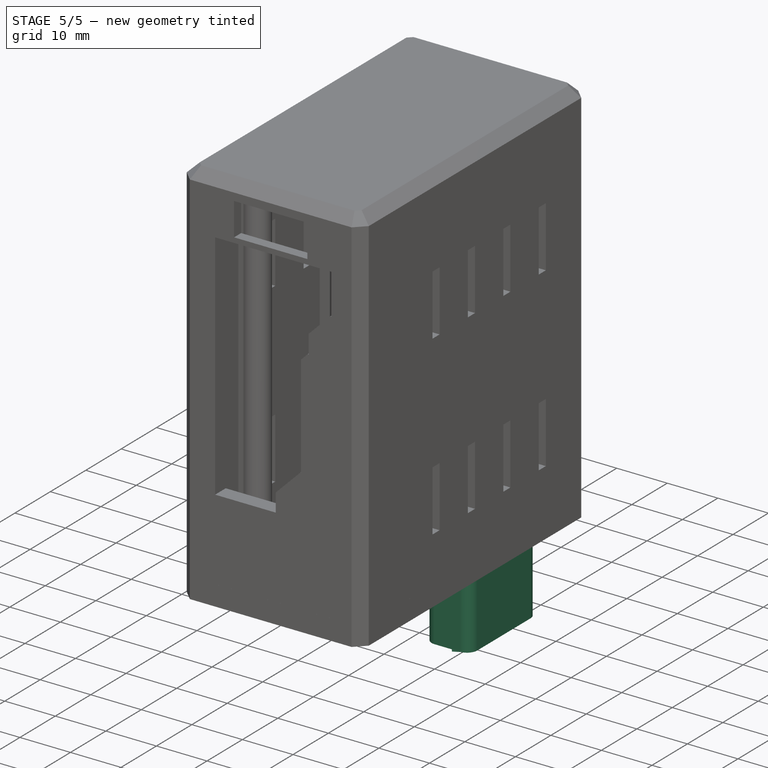
[diagram: stage 5 of 5 — iso view after this stage's code; geometry added in this stage tinted green]
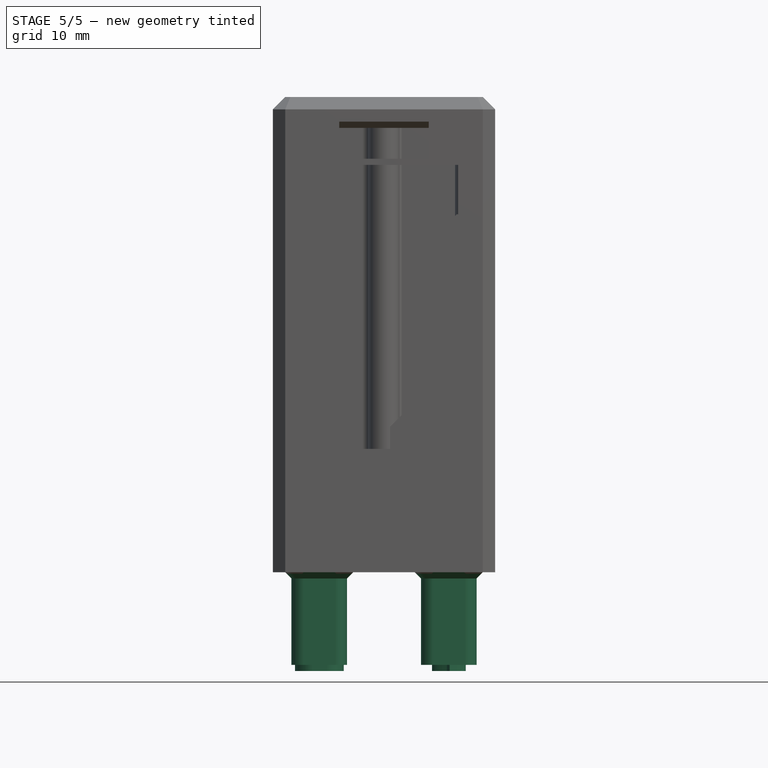
[diagram: stage 5 of 5 — front view after this stage's code; geometry added in this stage tinted green]
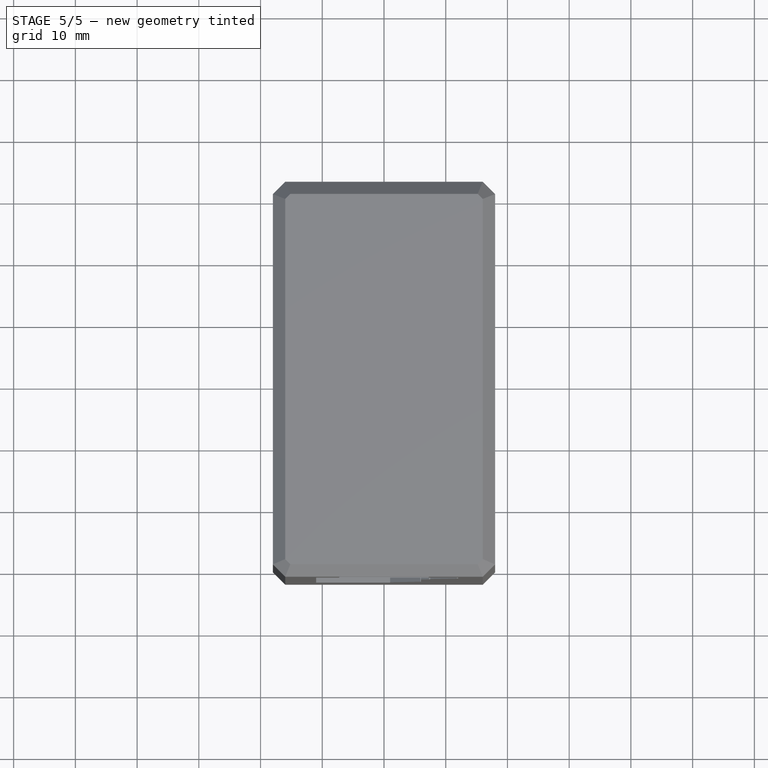
[diagram: stage 5 of 5 — top view after this stage's code; geometry added in this stage tinted green]
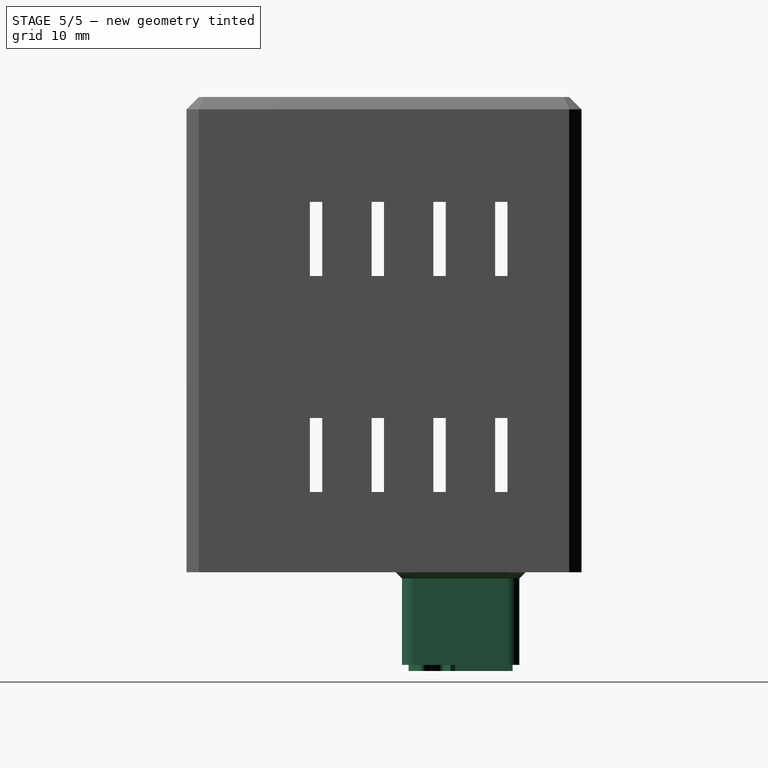
[diagram: stage 5 of 5 — right view after this stage's code; geometry added in this stage tinted green]
FEATURE [PartDesign::Pocket] Pocket004
  BaseFeature = -> Pocket003
  Length = 5
  Length2 = 100
  Profile = -> Sketch013
  Type = 0
FEATURE [PartDesign::Pad] Pad009
  BaseFeature = -> Pocket004
  Direction = (1,1,1)
  Length = 15
  Length2 = 100
  Profile = -> Sketch006
  Type = 0
FEATURE [Sketcher::SketchObject] Sketch017
  FullyConstrained = false
  MapMode = 5
  Placement = pos=(0,0,-15) rot=(1,0,0;3.14159rad)
  Support = -> [Pad009]
  sketch-geometry (25):
    g0: LineSegment StartX=8.09603 StartY=-14.1657 StartZ=0 EndX=8.09603 EndY=-20.1657 EndZ=0
    g1: LineSegment StartX=8.09603 StartY=-20.1657 StartZ=0 EndX=13.096 EndY=-20.1657 EndZ=0
    g2: LineSegment StartX=13.096 StartY=-20.1657 StartZ=0 EndX=13.096 EndY=-14.1657 EndZ=0
    g3: LineSegment StartX=13.096 StartY=-14.1657 StartZ=0 EndX=11.596 EndY=-14.1657 EndZ=0
    g4: LineSegment StartX=11.596 StartY=-14.1657 StartZ=0 EndX=11.596 EndY=-13.1657 EndZ=0
    g5: LineSegment StartX=11.596 StartY=-13.1657 StartZ=0 EndX=9.59603 EndY=-13.1657 EndZ=0
    g6: LineSegment StartX=9.59603 StartY=-13.1657 StartZ=0 EndX=9.59603 EndY=-14.1657 EndZ=0
    g7: LineSegment StartX=9.59603 StartY=-14.1657 StartZ=0 EndX=8.09603 EndY=-14.1657 EndZ=0
    g8-g11: Circle x4 (B-spline internal-alignment scaffolding for g12; pole/knot coordinates omitted)
    g12: BSplineCurve PolesCount=4 KnotsCount=2 Degree=3 IsPeriodic=0
    g13: GeomPoint X=10.6286 Y=-3.99416 Z=0
    g14: GeomPoint X=10.1786 Y=-10.769 Z=0
    g15-g18: Circle x4 (B-spline internal-alignment scaffolding for g19; pole/knot coordinates omitted)
    g19: BSplineCurve PolesCount=4 KnotsCount=2 Degree=3 IsPeriodic=0
    g20: GeomPoint X=10.1786 Y=-4.77358 Z=0
    g21: GeomPoint X=9.72858 Y=-11.5485 Z=0
    g22: LineSegment StartX=10.1786 StartY=-1.91539 StartZ=0 EndX=10.1786 EndY=-22.783 EndZ=0
    g23: LineSegment StartX=9.72858 StartY=-11.5485 StartZ=0 EndX=10.1786 EndY=-10.769 EndZ=0
    g24: LineSegment StartX=10.6286 StartY=-3.99416 StartZ=0 EndX=10.1786 EndY=-4.77358 EndZ=0
  constraints (49):
    c: Vertical(g0)
    c: Coincident(g0,g1)
    c: Horizontal(g1)
    c: Coincident(g1,g2)
    c: Vertical(g2)
    c: Coincident(g2,g3)
    c: Horizontal(g3)
    c: Coincident(g3,g4)
    c: Coincident(g4,g5)
    c: Horizontal(g5)
    c: Coincident(g5,g6)
    c: Coincident(g6,g7)
    c: Coincident(g7,g0)
    c: Horizontal(g7)
    c: Vertical(g4)
    c: Vertical(g6)
    c: Equal(g3,g7)
    c: Equal(g4,g6)
    c: Distance(g5) = 2
    c: Distance(g4) = 1
    c: Distance(g3) = 1.5
    c: Distance(g2) = 6
    c: Weight(g8) = 1
    c: Equal(g8,g9)
    c: Equal(g8,g10)
    c: Equal(g8,g11)
    c: InternalAlignment(g8-g11 -> g12) x4
    c: InternalAlignment(g13,g12)
    c: InternalAlignment(g14,g12)
    c: Weight(g15) = 1
    c: Equal(g15,g16)
    c: Equal(g15,g17)
    c: Equal(g15,g18)
    c: InternalAlignment(g15-g18 -> g19) x4
    c: InternalAlignment(g20,g19)
    c: InternalAlignment(g21,g19)
    c: Distance(g19,g12) = 0.9
    c: Distance(g19,g12) = 0.9
    c: Vertical(g22)
    c: PointOnObject(g19,g22)
    c: PointOnObject(g12,g22)
    c: Coincident(g23,g19)
    c: Coincident(g23,g12)
    c: Coincident(g24,g12)
    c: Coincident(g24,g19)
    c: DistanceY(g10,g9) = 0
    c: DistanceY(g17,g16) = 0
    c: Angle(g24) = -2.0944
    c: Angle(g23) = 1.0472
FEATURE [Sketcher::SketchObject] Sketch023
  FullyConstrained = false
  MapMode = 5
  Placement = pos=(0,0,-15) rot=(1,0,0;3.14159rad)
  sketch-geometry (28):
    g0: LineSegment StartX=-14.1286 StartY=-11.4813 StartZ=0 EndX=-6.82862 EndY=-11.4813 EndZ=0
    g1: LineSegment StartX=-6.82862 StartY=-11.4813 StartZ=0 EndX=-6.82862 EndY=-15.2813 EndZ=0
    g2: LineSegment StartX=-6.82862 StartY=-15.2813 StartZ=0 EndX=-8.02862 EndY=-15.2813 EndZ=0
    g3: LineSegment StartX=-8.02862 StartY=-15.2813 StartZ=0 EndX=-8.02862 EndY=-13.0813 EndZ=0
    g4: LineSegment StartX=-8.02862 StartY=-13.0813 StartZ=0 EndX=-9.82862 EndY=-13.0813 EndZ=0
    g5: LineSegment StartX=-9.82862 StartY=-13.0813 StartZ=0 EndX=-9.82862 EndY=-14.5813 EndZ=0
    g6: LineSegment StartX=-9.82862 StartY=-14.5813 StartZ=0 EndX=-11.0286 EndY=-14.5813 EndZ=0
    g7: LineSegment StartX=-11.0286 StartY=-14.5813 StartZ=0 EndX=-11.0286 EndY=-13.0813 EndZ=0
    g8: LineSegment StartX=-11.0286 StartY=-13.0813 StartZ=0 EndX=-14.1286 EndY=-13.0813 EndZ=0
    g9: LineSegment StartX=-14.1286 StartY=-13.0813 StartZ=0 EndX=-14.1286 EndY=-11.4813 EndZ=0
    g10: LineSegment StartX=-14.1286 StartY=-17.0432 StartZ=0 EndX=-6.82862 EndY=-17.0432 EndZ=0
    g11: LineSegment StartX=-6.82862 StartY=-17.0432 StartZ=0 EndX=-6.82862 EndY=-20.8432 EndZ=0
    g12: LineSegment StartX=-6.82862 StartY=-20.8432 StartZ=0 EndX=-8.02862 EndY=-20.8432 EndZ=0
    g13: LineSegment StartX=-8.02862 StartY=-20.8432 StartZ=0 EndX=-8.02862 EndY=-18.6432 EndZ=0
    g14: LineSegment StartX=-8.02862 StartY=-18.6432 StartZ=0 EndX=-9.82862 EndY=-18.6432 EndZ=0
    g15: LineSegment StartX=-9.82862 StartY=-18.6432 StartZ=0 EndX=-9.82862 EndY=-20.1432 EndZ=0
    g16: LineSegment StartX=-9.82862 StartY=-20.1432 StartZ=0 EndX=-11.0286 EndY=-20.1432 EndZ=0
    g17: LineSegment StartX=-11.0286 StartY=-20.1432 StartZ=0 EndX=-11.0286 EndY=-18.6432 EndZ=0
    g18: LineSegment StartX=-11.0286 StartY=-18.6432 StartZ=0 EndX=-14.1286 EndY=-18.6432 EndZ=0
    g19: LineSegment StartX=-14.1286 StartY=-18.6432 StartZ=0 EndX=-14.1286 EndY=-17.0432 EndZ=0
    g20: ArcOfCircle CenterX=-11.5677 CenterY=-7.44256 CenterZ=0 NormalX=0 NormalY=0 NormalZ=1 AngleXU=0 Radius=2.85 StartAngle=1.5708 EndAngle=4.71239
    g21: ArcOfCircle CenterX=-9.36769 CenterY=-7.44256 CenterZ=0 NormalX=0 NormalY=0 NormalZ=1 AngleXU=0 Radius=2.85 StartAngle=4.71239 EndAngle=7.85398
    g22: LineSegment StartX=-11.5677 StartY=-10.2926 StartZ=0 EndX=-9.36769 EndY=-10.2926 EndZ=0
    g23: LineSegment StartX=-11.5677 StartY=-4.59256 StartZ=0 EndX=-9.36769 EndY=-4.59256 EndZ=0
    g24: ArcOfCircle CenterX=-11.5677 CenterY=-7.44256 CenterZ=0 NormalX=0 NormalY=0 NormalZ=1 AngleXU=0 Radius=1.25 StartAngle=1.5708 EndAngle=4.71239
    g25: ArcOfCircle CenterX=-9.36769 CenterY=-7.44256 CenterZ=0 NormalX=0 NormalY=0 NormalZ=1 AngleXU=0 Radius=1.25 StartAngle=4.71239 EndAngle=7.85398
    g26: LineSegment StartX=-11.5677 StartY=-8.69256 StartZ=0 EndX=-9.36769 EndY=-8.69256 EndZ=0
    g27: LineSegment StartX=-11.5677 StartY=-6.19256 StartZ=0 EndX=-9.36769 EndY=-6.19256 EndZ=0
  constraints (74):
    c: Horizontal(g0)
    c: Coincident(g0,g1)
    c: Vertical(g1)
    c: Coincident(g1,g2)
    c: Coincident(g2,g3)
    c: Coincident(g3,g4)
    c: Horizontal(g4)
    c: Coincident(g4,g5)
    c: Vertical(g5)
    c: Coincident(g5,g6)
    c: Coincident(g6,g7)
    c: Coincident(g7,g8)
    c: Coincident(g8,g9)
    c: Coincident(g9,g0)
    c: Horizontal(g10)
    c: Coincident(g10,g11)
    c: Vertical(g11)
    c: Coincident(g11,g12)
    c: Coincident(g12,g13)
    c: Vertical(g13)
    c: Coincident(g13,g14)
    c: Horizontal(g14)
    c: Coincident(g14,g15)
    c: Vertical(g15)
    c: Coincident(g15,g16)
    c: Horizontal(g16)
    c: Coincident(g16,g17)
    c: Coincident(g17,g18)
    c: Coincident(g18,g19)
    c: Coincident(g19,g10)
    c: Vertical(g19)
    c: Equal(g10,g0)
    c: Equal(g11,g1)
    c: Equal(g19,g9)
    c: Equal(g7,g17)
    c: Equal(g14,g4)
    c: Equal(g12,g2)
    c: Horizontal(g6)
    c: Horizontal(g2)
    c: Vertical(g7)
    c: Vertical(g9)
    c: Horizontal(g18)
    c: Vertical(g17)
    c: Horizontal(g8)
    c: Vertical(g3)
    c: Horizontal(g12)
    c: Distance(g9) = 1.6
    c: Distance(g14,g10) = 1.6
    c: Distance(g4,g0) = 1.6
    c: Distance(g16) = 1.2
    c: Distance(g12) = 1.2
    c: Distance(g15) = 1.5
    c: Distance(g0) = 7.3
    c: Equal(g6,g16)
    c: Distance(g4) = 1.8
    c: Distance(g1) = 3.8
    c: DistanceX(g8,g10) = 0
    c: Tangent(g20,g23) = 1.5708
    c: Tangent(g20,g22) = -1.5708
    c: Tangent(g22,g21) = -1.5708
    c: Tangent(g23,g21) = 1.5708
    c: Horizontal(g22)
    c: Equal(g20,g21)
    c: Tangent(g24,g27) = 1.5708
    c: Tangent(g24,g26) = -1.5708
    c: Tangent(g26,g25) = -1.5708
    c: Tangent(g27,g25) = 1.5708
    c: Horizontal(g26)
    c: Equal(g24,g25)
    c: Coincident(g24,g20)
    c: Equal(g23,g27)
    c: Distance(g25,g21) = 1.6
    c: Distance(g27) = 2.2
    c: Diameter(g21) = 5.7
FEATURE [PartDesign::Pad] Pad013
  BaseFeature = -> Pad009
  Direction = (1,1,1)
  Length = 1
  Length2 = 100
  Profile = -> Sketch017
  Type = 0
FEATURE [PartDesign::Pad] Pad014
  BaseFeature = -> Pad013
  Direction = (1,1,1)
  Length = 1
  Length2 = 100
  Profile = -> Sketch023
  Type = 0
FEATURE [PartDesign::Fillet] Fillet
  Base = -> Pad014 [Edge61,Edge56,Edge57,Edge59,Edge46,Edge48,Edge50,Edge45]
  BaseFeature = -> Pad014
  Radius = 2
  SupportTransform = false
FEATURE [PartDesign::Chamfer] Chamfer
  Angle = 45
  Base = -> Fillet [Edge6]
  BaseFeature = -> Fillet
  ChamferType = 0
  FlipDirection = false
  Size = 1
  Size2 = 1
  SupportTransform = false
FEATURE [PartDesign::Chamfer] Chamfer011
  Angle = 45
  Base = -> Chamfer [Edge23]
  BaseFeature = -> Chamfer
  ChamferType = 0
  FlipDirection = false
  Size = 1
  Size2 = 1
  SupportTransform = false
FEATURE [PartDesign::Chamfer] Chamfer012
  Angle = 45
  Base = -> Chamfer011 [Edge65,Edge67,Edge62,Edge63]
  BaseFeature = -> Chamfer011
  ChamferType = 0
  FlipDirection = false
  Size = 2
  Size2 = 1
  SupportTransform = false
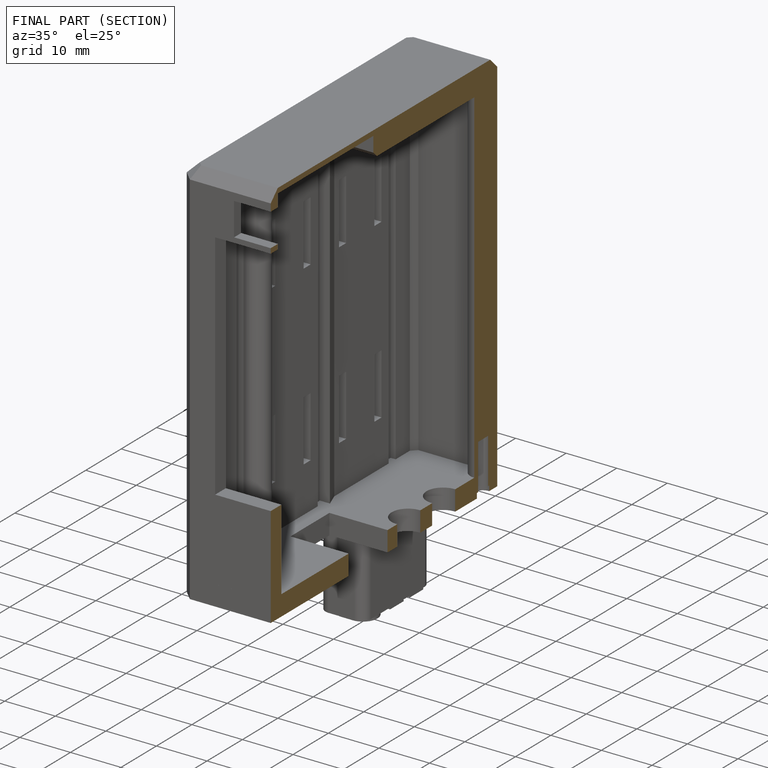
[diagram: finished part — half-section view (interior)]
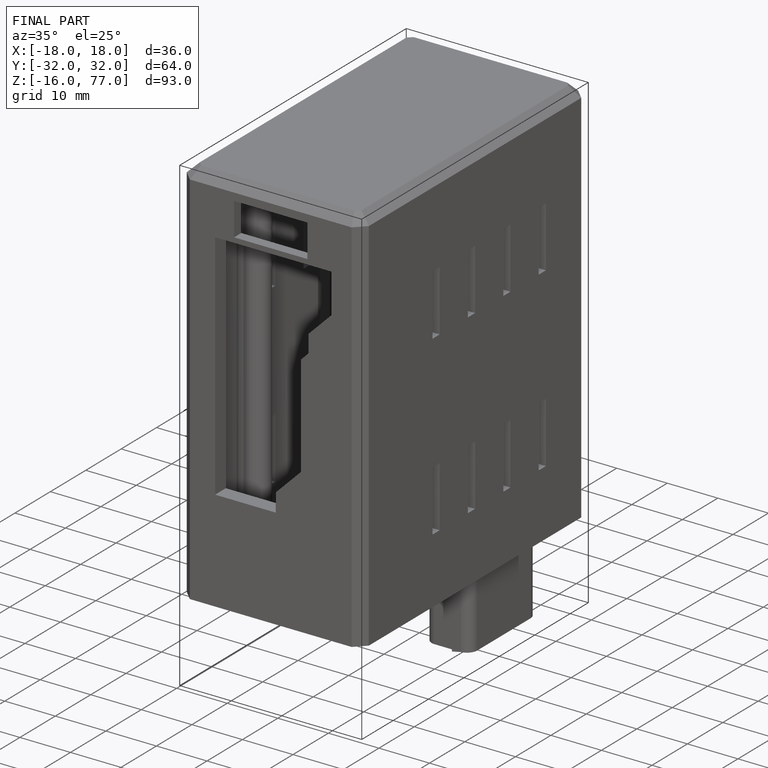
[diagram: finished part — iso view with bounding-box wireframe]
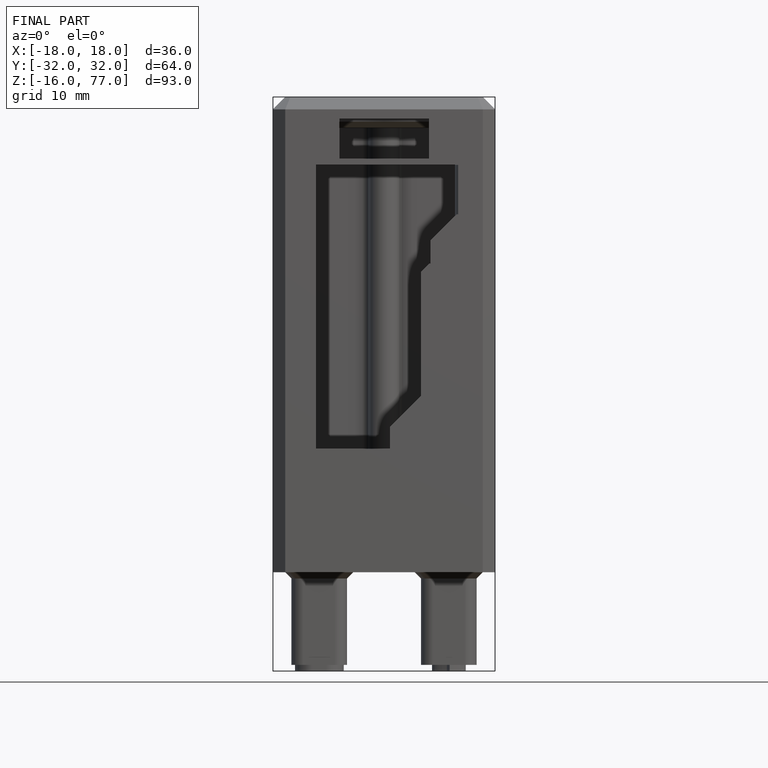
[diagram: finished part — front view with bounding-box wireframe]
